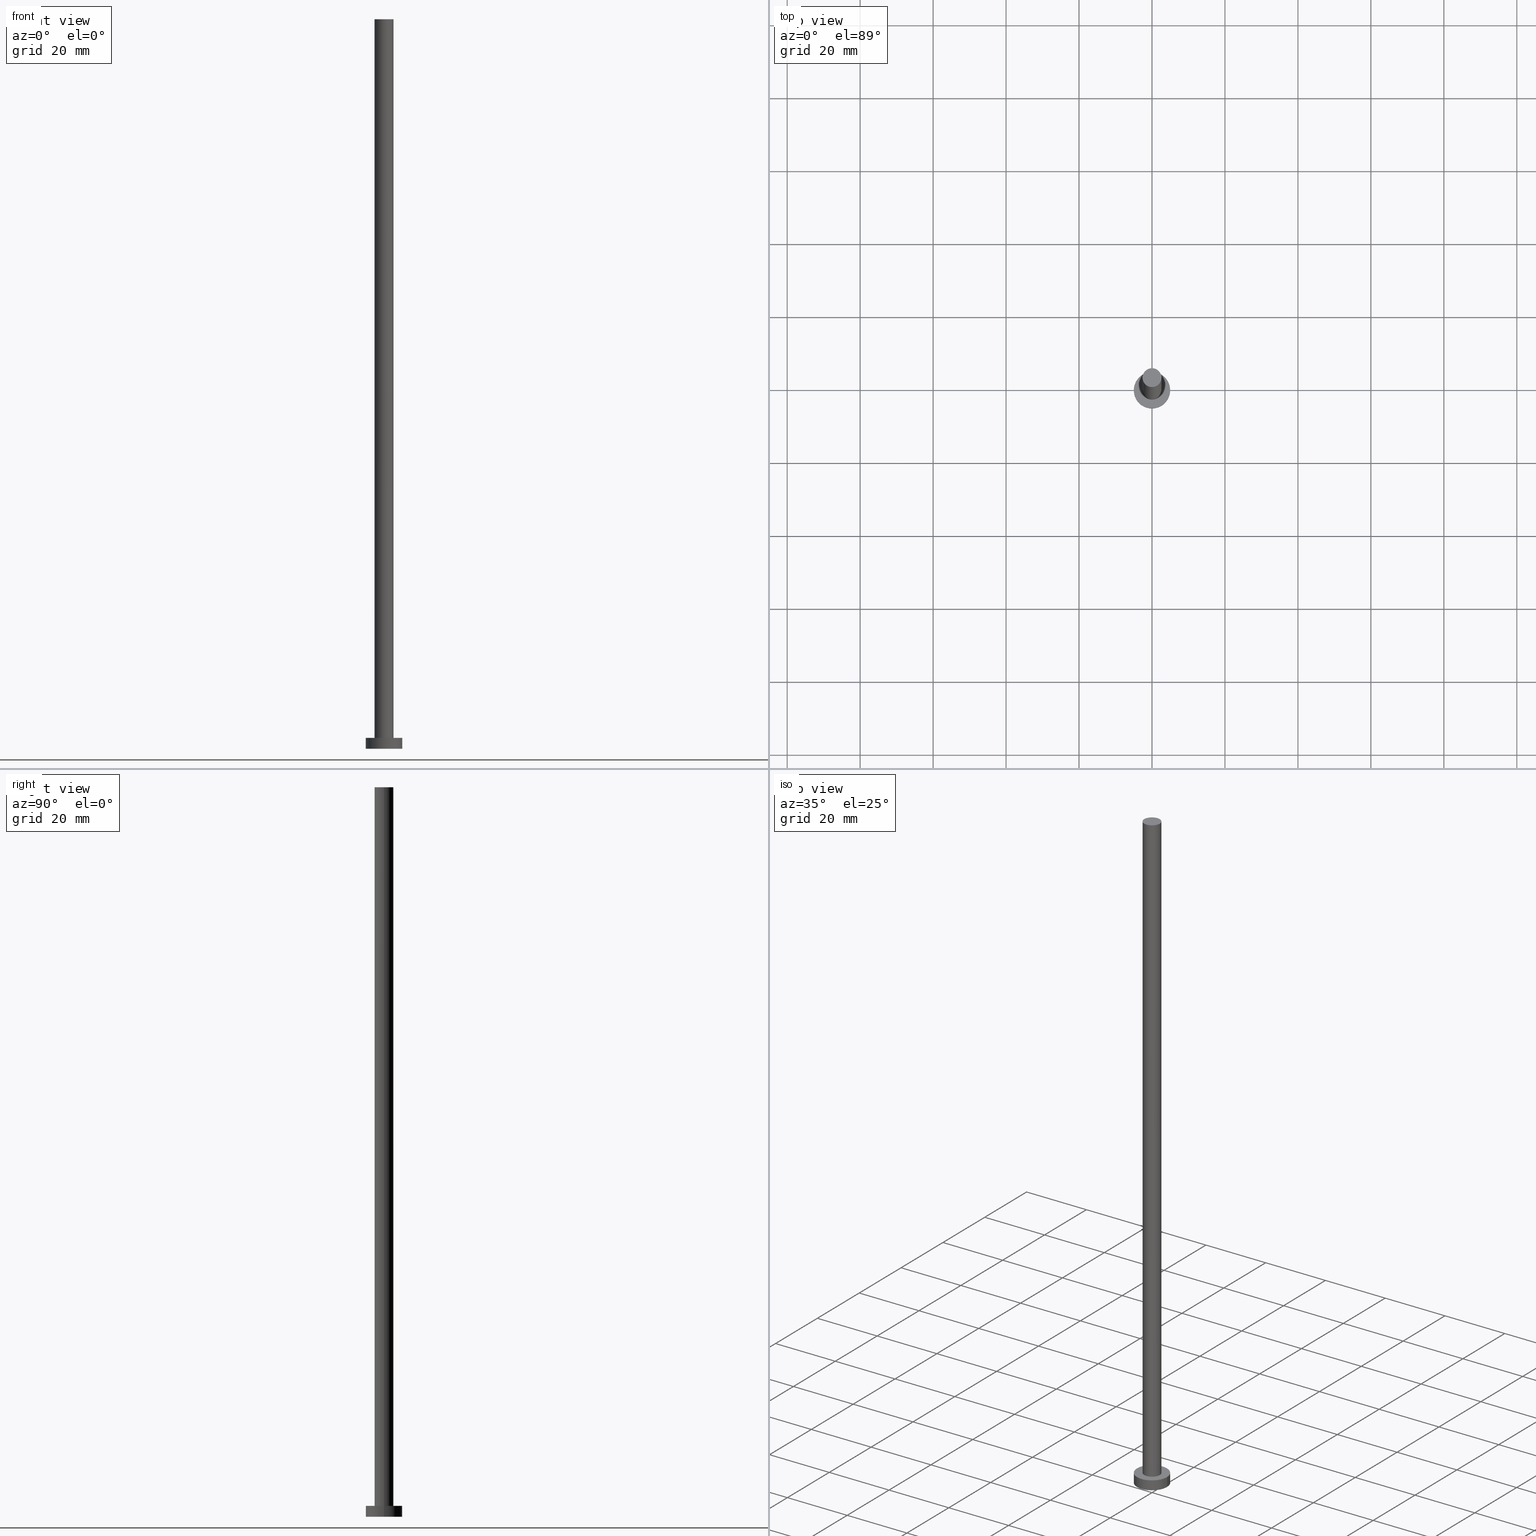
[diagram: canonical four-view strip — front | top / right | iso, engineering-drawing reading convention]
A machine part, canonical four-view strip (front | top / right | iso — engineering-drawing reading convention). The complete STEP part file that produces these views, byte-faithful:
ISO-10303-21;
HEADER;
FILE_DESCRIPTION (( 'STEP AP203' ),
    '1' );
FILE_NAME ('53a8.STEP',
    '2023-02-13T13:24:31',
    ( '' ),
    ( '' ),
    'SwSTEP 2.0',
    'SolidWorks 2019',
    '' );
FILE_SCHEMA (( 'CONFIG_CONTROL_DESIGN' ));
ENDSEC;

DATA;
#1 = VERTEX_POINT ( 'NONE', #17 ) ;
#2 = EDGE_LOOP ( 'NONE', ( #103, #217 ) ) ;
#3 = CARTESIAN_POINT ( 'NONE',  ( 0.000000000000000000, 0.000000000000000000, 200.0000000000000000 ) ) ;
#4 = ADVANCED_BREP_SHAPE_REPRESENTATION ( '53a8', ( #187, #215 ), #126 ) ;
#5 = CYLINDRICAL_SURFACE ( 'NONE', #11, 5.000000000000000000 ) ;
#6 = VECTOR ( 'NONE', #127, 1000.000000000000000 ) ;
#7 = CARTESIAN_POINT ( 'NONE',  ( 0.000000000000000000, 0.000000000000000000, 200.0000000000000000 ) ) ;
#8 = DIRECTION ( 'NONE',  ( -0.000000000000000000, -0.000000000000000000, -1.000000000000000000 ) ) ;
#9 = CARTESIAN_POINT ( 'NONE',  ( 0.000000000000000000, 0.000000000000000000, 200.0000000000000000 ) ) ;
#10 = PERSON_AND_ORGANIZATION ( #85, #47 ) ;
#11 = AXIS2_PLACEMENT_3D ( 'NONE', #16, #102, #141 ) ;
#12 = APPROVAL_STATUS ( 'not_yet_approved' ) ;
#13 = EDGE_LOOP ( 'NONE', ( #117, #98, #15, #81 ) ) ;
#14 = APPLICATION_PROTOCOL_DEFINITION ( 'international standard', 'config_control_design', 1994, #60 ) ;
#15 = ORIENTED_EDGE ( 'NONE', *, *, #121, .T. ) ;
#16 = CARTESIAN_POINT ( 'NONE',  ( 0.000000000000000000, 0.000000000000000000, 3.000000000000000000 ) ) ;
#17 = CARTESIAN_POINT ( 'NONE',  ( 5.000000000000000000, 6.123233995736766282E-16, 0.000000000000000000 ) ) ;
#18 = AXIS2_PLACEMENT_3D ( 'NONE', #144, #49, #22 ) ;
#19 = APPROVAL_PERSON_ORGANIZATION ( #31, #96, #133 ) ;
#20 = ORIENTED_EDGE ( 'NONE', *, *, #169, .F. ) ;
#21 = VERTEX_POINT ( 'NONE', #204 ) ;
#22 = DIRECTION ( 'NONE',  ( 1.000000000000000000, 0.000000000000000000, 0.000000000000000000 ) ) ;
#23 = CIRCLE ( 'NONE', #201, 5.000000000000000000 ) ;
#24 = LOCAL_TIME ( 14, 24, 31.00000000000000000, #193 ) ;
#25 = FACE_OUTER_BOUND ( 'NONE', #80, .T. ) ;
#26 = CIRCLE ( 'NONE', #113, 2.600000000000000089 ) ;
#27 =( NAMED_UNIT ( * ) PLANE_ANGLE_UNIT ( ) SI_UNIT ( $, .RADIAN. ) );
#28 = AXIS2_PLACEMENT_3D ( 'NONE', #161, #128, #108 ) ;
#29 = DATE_AND_TIME ( #54, #164 ) ;
#30 = VERTEX_POINT ( 'NONE', #155 ) ;
#31 = PERSON_AND_ORGANIZATION ( #85, #47 ) ;
#32 = PERSON_AND_ORGANIZATION_ROLE ( 'creator' ) ;
#33 = EDGE_LOOP ( 'NONE', ( #112, #178 ) ) ;
#34 = VECTOR ( 'NONE', #243, 1000.000000000000000 ) ;
#35 = APPLICATION_CONTEXT ( 'configuration controlled 3d designs of mechanical parts and assemblies' ) ;
#36 = ORIENTED_EDGE ( 'NONE', *, *, #159, .F. ) ;
#37 = CARTESIAN_POINT ( 'NONE',  ( 0.000000000000000000, 0.000000000000000000, 3.000000000000000000 ) ) ;
#38 = LOCAL_TIME ( 14, 24, 31.00000000000000000, #149 ) ;
#39 = EDGE_CURVE ( 'NONE', #123, #1, #238, .T. ) ;
#40 = CARTESIAN_POINT ( 'NONE',  ( 0.000000000000000000, 0.000000000000000000, 3.000000000000000000 ) ) ;
#41 = EDGE_LOOP ( 'NONE', ( #115, #195, #253, #222 ) ) ;
#42 = ORIENTED_EDGE ( 'NONE', *, *, #110, .F. ) ;
#43 = CC_DESIGN_SECURITY_CLASSIFICATION ( #71, ( #56 ) ) ;
#44 = VERTEX_POINT ( 'NONE', #105 ) ;
#45 = DIRECTION ( 'NONE',  ( 1.000000000000000000, 0.000000000000000000, 0.000000000000000000 ) ) ;
#46 = CARTESIAN_POINT ( 'NONE',  ( 0.000000000000000000, 0.000000000000000000, 3.000000000000000000 ) ) ;
#47 = ORGANIZATION ( 'NEUR�EN�', 'NEUR�EN�', '' ) ;
#48 = EDGE_CURVE ( 'NONE', #123, #101, #234, .T. ) ;
#49 = DIRECTION ( 'NONE',  ( 0.000000000000000000, 0.000000000000000000, 1.000000000000000000 ) ) ;
#50 = CC_DESIGN_DATE_AND_TIME_ASSIGNMENT ( #247, #170, ( #64 ) ) ;
#51 = CARTESIAN_POINT ( 'NONE',  ( 0.000000000000000000, 0.000000000000000000, 0.000000000000000000 ) ) ;
#52 = CC_DESIGN_APPROVAL ( #96, ( #64 ) ) ;
#53 = DATE_TIME_ROLE ( 'classification_date' ) ;
#54 = CALENDAR_DATE ( 2023, 13, 2 ) ;
#55 = PERSON_AND_ORGANIZATION ( #85, #47 ) ;
#56 = PRODUCT_DEFINITION_FORMATION_WITH_SPECIFIED_SOURCE ( 'LIBOVOLN�', '', #212, .NOT_KNOWN. ) ;
#57 = EDGE_CURVE ( 'NONE', #21, #30, #226, .T. ) ;
#58 = DIRECTION ( 'NONE',  ( 1.000000000000000000, 0.000000000000000000, 0.000000000000000000 ) ) ;
#59 = CARTESIAN_POINT ( 'NONE',  ( 0.000000000000000000, 0.000000000000000000, 0.000000000000000000 ) ) ;
#60 = APPLICATION_CONTEXT ( 'configuration controlled 3d designs of mechanical parts and assemblies' ) ;
#61 = FACE_OUTER_BOUND ( 'NONE', #13, .T. ) ;
#62 = CARTESIAN_POINT ( 'NONE',  ( 0.000000000000000000, 0.000000000000000000, 3.000000000000000000 ) ) ;
#63 = DIRECTION ( 'NONE',  ( -0.000000000000000000, -0.000000000000000000, -1.000000000000000000 ) ) ;
#64 = PRODUCT_DEFINITION ( 'NEZN�M�', '', #56, #245 ) ;
#65 = CYLINDRICAL_SURFACE ( 'NONE', #160, 2.600000000000000089 ) ;
#66 = DIRECTION ( 'NONE',  ( 0.000000000000000000, 0.000000000000000000, 1.000000000000000000 ) ) ;
#67 = CARTESIAN_POINT ( 'NONE',  ( 2.600000000000000089, 3.184081677783118191E-16, 3.000000000000000000 ) ) ;
#68 = PERSON_AND_ORGANIZATION_ROLE ( 'creator' ) ;
#69 = AXIS2_PLACEMENT_3D ( 'NONE', #59, #76, #230 ) ;
#70 = APPROVAL_DATE_TIME ( #29, #96 ) ;
#71 = SECURITY_CLASSIFICATION ( '', '', #213 ) ;
#72 = PERSON_AND_ORGANIZATION_ROLE ( 'classification_officer' ) ;
#73 = APPROVAL_STATUS ( 'not_yet_approved' ) ;
#74 = CC_DESIGN_APPROVAL ( #148, ( #71 ) ) ;
#75 = CLOSED_SHELL ( 'NONE', ( #251, #77, #140, #100, #162, #180, #94 ) ) ;
#76 = DIRECTION ( 'NONE',  ( 0.000000000000000000, 0.000000000000000000, 1.000000000000000000 ) ) ;
#77 = ADVANCED_FACE ( 'NONE', ( #61 ), #5, .T. ) ;
#78 = FACE_OUTER_BOUND ( 'NONE', #219, .T. ) ;
#79 = AXIS2_PLACEMENT_3D ( 'NONE', #205, #228, #146 ) ;
#80 = EDGE_LOOP ( 'NONE', ( #118, #200, #120, #220 ) ) ;
#81 = ORIENTED_EDGE ( 'NONE', *, *, #186, .F. ) ;
#82 = DIRECTION ( 'NONE',  ( 0.000000000000000000, 0.000000000000000000, 1.000000000000000000 ) ) ;
#83 = LINE ( 'NONE', #229, #6 ) ;
#84 = DIRECTION ( 'NONE',  ( 1.000000000000000000, 0.000000000000000000, -0.000000000000000000 ) ) ;
#85 = PERSON ( 'NEUR�EN�', 'NEUR�EN�', 'NEUR�EN�', ('NEUR�EN�'), ('NEUR�EN�'), ('NEUR�EN�') ) ;
#86 =( LENGTH_UNIT ( ) NAMED_UNIT ( * ) SI_UNIT ( .MILLI., .METRE. ) );
#87 = CIRCLE ( 'NONE', #208, 2.600000000000000089 ) ;
#88 = FACE_OUTER_BOUND ( 'NONE', #211, .T. ) ;
#89 = EDGE_CURVE ( 'NONE', #101, #123, #23, .T. ) ;
#90 = PERSON_AND_ORGANIZATION ( #85, #47 ) ;
#91 = CC_DESIGN_PERSON_AND_ORGANIZATION_ASSIGNMENT ( #233, #68, ( #56 ) ) ;
#92 = AXIS2_PLACEMENT_3D ( 'NONE', #51, #124, #84 ) ;
#93 = APPROVAL_ROLE ( '' ) ;
#94 = ADVANCED_FACE ( 'NONE', ( #221 ), #179, .T. ) ;
#95 = SHAPE_DEFINITION_REPRESENTATION ( #177, #4 ) ;
#96 = APPROVAL ( #73, 'NEUR�EN�' ) ;
#97 = ORIENTED_EDGE ( 'NONE', *, *, #48, .T. ) ;
#98 = ORIENTED_EDGE ( 'NONE', *, *, #39, .T. ) ;
#99 = VECTOR ( 'NONE', #63, 1000.000000000000000 ) ;
#100 = ADVANCED_FACE ( 'NONE', ( #241, #78 ), #239, .T. ) ;
#101 = VERTEX_POINT ( 'NONE', #225 ) ;
#102 = DIRECTION ( 'NONE',  ( -0.000000000000000000, -0.000000000000000000, -1.000000000000000000 ) ) ;
#103 = ORIENTED_EDGE ( 'NONE', *, *, #134, .F. ) ;
#104 = VERTEX_POINT ( 'NONE', #135 ) ;
#105 = CARTESIAN_POINT ( 'NONE',  ( -5.000000000000000000, 0.000000000000000000, 0.000000000000000000 ) ) ;
#106 = DIRECTION ( 'NONE',  ( 1.000000000000000000, 0.000000000000000000, 0.000000000000000000 ) ) ;
#107 = CYLINDRICAL_SURFACE ( 'NONE', #28, 2.600000000000000089 ) ;
#108 = DIRECTION ( 'NONE',  ( -1.000000000000000000, 0.000000000000000000, 0.000000000000000000 ) ) ;
#109 = DIRECTION ( 'NONE',  ( 0.000000000000000000, 0.000000000000000000, 1.000000000000000000 ) ) ;
#110 = EDGE_CURVE ( 'NONE', #104, #196, #26, .T. ) ;
#111 = COORDINATED_UNIVERSAL_TIME_OFFSET ( 1, 0, .AHEAD. ) ;
#112 = ORIENTED_EDGE ( 'NONE', *, *, #159, .T. ) ;
#113 = AXIS2_PLACEMENT_3D ( 'NONE', #37, #139, #175 ) ;
#114 = CALENDAR_DATE ( 2023, 13, 2 ) ;
#115 = ORIENTED_EDGE ( 'NONE', *, *, #39, .F. ) ;
#116 = CC_DESIGN_DATE_AND_TIME_ASSIGNMENT ( #216, #53, ( #71 ) ) ;
#117 = ORIENTED_EDGE ( 'NONE', *, *, #48, .F. ) ;
#118 = ORIENTED_EDGE ( 'NONE', *, *, #57, .F. ) ;
#119 = AXIS2_PLACEMENT_3D ( 'NONE', #40, #181, #137 ) ;
#120 = ORIENTED_EDGE ( 'NONE', *, *, #198, .T. ) ;
#121 = EDGE_CURVE ( 'NONE', #1, #44, #224, .T. ) ;
#122 = CARTESIAN_POINT ( 'NONE',  ( 0.000000000000000000, 0.000000000000000000, 3.000000000000000000 ) ) ;
#123 = VERTEX_POINT ( 'NONE', #242 ) ;
#124 = DIRECTION ( 'NONE',  ( 0.000000000000000000, 0.000000000000000000, 1.000000000000000000 ) ) ;
#125 = DIRECTION ( 'NONE',  ( 1.000000000000000000, 0.000000000000000000, 0.000000000000000000 ) ) ;
#126 =( GEOMETRIC_REPRESENTATION_CONTEXT ( 3 ) GLOBAL_UNCERTAINTY_ASSIGNED_CONTEXT ( ( #167 ) ) GLOBAL_UNIT_ASSIGNED_CONTEXT ( ( #86, #27, #163 ) ) REPRESENTATION_CONTEXT ( 'NONE', 'WORKASPACE' ) );
#127 = DIRECTION ( 'NONE',  ( -0.000000000000000000, -0.000000000000000000, -1.000000000000000000 ) ) ;
#128 = DIRECTION ( 'NONE',  ( -0.000000000000000000, -0.000000000000000000, -1.000000000000000000 ) ) ;
#129 = DATE_AND_TIME ( #210, #38 ) ;
#130 = AXIS2_PLACEMENT_3D ( 'NONE', #254, #240, #203 ) ;
#131 = CALENDAR_DATE ( 2023, 13, 2 ) ;
#132 = AXIS2_PLACEMENT_3D ( 'NONE', #3, #157, #176 ) ;
#133 = APPROVAL_ROLE ( '' ) ;
#134 = EDGE_CURVE ( 'NONE', #44, #1, #173, .T. ) ;
#135 = CARTESIAN_POINT ( 'NONE',  ( -2.600000000000000089, 0.000000000000000000, 3.000000000000000000 ) ) ;
#136 = APPROVAL ( #235, 'NEUR�EN�' ) ;
#137 = DIRECTION ( 'NONE',  ( 1.000000000000000000, 0.000000000000000000, 0.000000000000000000 ) ) ;
#138 = PRODUCT_RELATED_PRODUCT_CATEGORY ( 'detail', '', ( #212 ) ) ;
#139 = DIRECTION ( 'NONE',  ( 0.000000000000000000, 0.000000000000000000, 1.000000000000000000 ) ) ;
#140 = ADVANCED_FACE ( 'NONE', ( #184 ), #244, .T. ) ;
#141 = DIRECTION ( 'NONE',  ( -1.000000000000000000, 0.000000000000000000, 0.000000000000000000 ) ) ;
#142 = DIRECTION ( 'NONE',  ( 0.000000000000000000, 0.000000000000000000, 1.000000000000000000 ) ) ;
#143 = PLANE ( 'NONE',  #92 ) ;
#144 = CARTESIAN_POINT ( 'NONE',  ( 0.000000000000000000, 0.000000000000000000, 0.000000000000000000 ) ) ;
#145 = LOCAL_TIME ( 14, 24, 31.00000000000000000, #250 ) ;
#146 = DIRECTION ( 'NONE',  ( -1.000000000000000000, 0.000000000000000000, 0.000000000000000000 ) ) ;
#147 = PERSON_AND_ORGANIZATION ( #85, #47 ) ;
#148 = APPROVAL ( #12, 'NEUR�EN�' ) ;
#149 = COORDINATED_UNIVERSAL_TIME_OFFSET ( 1, 0, .AHEAD. ) ;
#150 = CC_DESIGN_PERSON_AND_ORGANIZATION_ASSIGNMENT ( #10, #166, ( #212 ) ) ;
#151 = APPROVAL_DATE_TIME ( #252, #148 ) ;
#152 = DIRECTION ( 'NONE',  ( 0.000000000000000000, 0.000000000000000000, 1.000000000000000000 ) ) ;
#153 = EDGE_LOOP ( 'NONE', ( #42, #223 ) ) ;
#154 = LOCAL_TIME ( 14, 24, 31.00000000000000000, #111 ) ;
#155 = CARTESIAN_POINT ( 'NONE',  ( -2.600000000000000089, 0.000000000000000000, 200.0000000000000000 ) ) ;
#156 = DIRECTION ( 'NONE',  ( -0.000000000000000000, -0.000000000000000000, -1.000000000000000000 ) ) ;
#157 = DIRECTION ( 'NONE',  ( 0.000000000000000000, 0.000000000000000000, 1.000000000000000000 ) ) ;
#158 = MECHANICAL_CONTEXT ( 'NONE', #35, 'mechanical' ) ;
#159 = EDGE_CURVE ( 'NONE', #30, #21, #87, .T. ) ;
#160 = AXIS2_PLACEMENT_3D ( 'NONE', #7, #8, #207 ) ;
#161 = CARTESIAN_POINT ( 'NONE',  ( 0.000000000000000000, 0.000000000000000000, 200.0000000000000000 ) ) ;
#162 = ADVANCED_FACE ( 'NONE', ( #227 ), #143, .F. ) ;
#163 =( NAMED_UNIT ( * ) SI_UNIT ( $, .STERADIAN. ) SOLID_ANGLE_UNIT ( ) );
#164 = LOCAL_TIME ( 14, 24, 31.00000000000000000, #194 ) ;
#165 = LINE ( 'NONE', #188, #99 ) ;
#166 = PERSON_AND_ORGANIZATION_ROLE ( 'design_owner' ) ;
#167 = UNCERTAINTY_MEASURE_WITH_UNIT (LENGTH_MEASURE( 1.000000000000000082E-05 ), #86, 'distance_accuracy_value', 'NONE');
#168 = PERSON_AND_ORGANIZATION ( #85, #47 ) ;
#169 = EDGE_CURVE ( 'NONE', #21, #196, #83, .T. ) ;
#170 = DATE_TIME_ROLE ( 'creation_date' ) ;
#171 = APPROVAL_ROLE ( '' ) ;
#172 = ORIENTED_EDGE ( 'NONE', *, *, #110, .T. ) ;
#173 = CIRCLE ( 'NONE', #18, 5.000000000000000000 ) ;
#174 = AXIS2_PLACEMENT_3D ( 'NONE', #46, #109, #125 ) ;
#175 = DIRECTION ( 'NONE',  ( 1.000000000000000000, 0.000000000000000000, 0.000000000000000000 ) ) ;
#176 = DIRECTION ( 'NONE',  ( 1.000000000000000000, 0.000000000000000000, -0.000000000000000000 ) ) ;
#177 = PRODUCT_DEFINITION_SHAPE ( 'NONE', 'NONE',  #64 ) ;
#178 = ORIENTED_EDGE ( 'NONE', *, *, #57, .T. ) ;
#179 = PLANE ( 'NONE',  #132 ) ;
#180 = ADVANCED_FACE ( 'NONE', ( #88 ), #107, .T. ) ;
#181 = DIRECTION ( 'NONE',  ( 0.000000000000000000, 0.000000000000000000, 1.000000000000000000 ) ) ;
#182 = CC_DESIGN_PERSON_AND_ORGANIZATION_ASSIGNMENT ( #90, #32, ( #64 ) ) ;
#183 = APPLICATION_PROTOCOL_DEFINITION ( 'international standard', 'config_control_design', 1994, #35 ) ;
#184 = FACE_OUTER_BOUND ( 'NONE', #41, .T. ) ;
#185 = LINE ( 'NONE', #206, #34 ) ;
#186 = EDGE_CURVE ( 'NONE', #101, #44, #185, .T. ) ;
#187 = MANIFOLD_SOLID_BREP ( 'P�idat vysunut�m3', #75 ) ;
#188 = CARTESIAN_POINT ( 'NONE',  ( -2.600000000000000089, 0.000000000000000000, 200.0000000000000000 ) ) ;
#189 = CARTESIAN_POINT ( 'NONE',  ( 0.000000000000000000, 0.000000000000000000, 0.000000000000000000 ) ) ;
#190 = VECTOR ( 'NONE', #156, 1000.000000000000000 ) ;
#191 = PERSON_AND_ORGANIZATION ( #85, #47 ) ;
#192 = AXIS2_PLACEMENT_3D ( 'NONE', #62, #142, #236 ) ;
#193 = COORDINATED_UNIVERSAL_TIME_OFFSET ( 1, 0, .AHEAD. ) ;
#194 = COORDINATED_UNIVERSAL_TIME_OFFSET ( 1, 0, .AHEAD. ) ;
#195 = ORIENTED_EDGE ( 'NONE', *, *, #89, .F. ) ;
#196 = VERTEX_POINT ( 'NONE', #67 ) ;
#197 = ORIENTED_EDGE ( 'NONE', *, *, #237, .T. ) ;
#198 = EDGE_CURVE ( 'NONE', #196, #104, #246, .T. ) ;
#199 = CARTESIAN_POINT ( 'NONE',  ( 5.000000000000000000, 6.123233995736766282E-16, 3.000000000000000000 ) ) ;
#200 = ORIENTED_EDGE ( 'NONE', *, *, #169, .T. ) ;
#201 = AXIS2_PLACEMENT_3D ( 'NONE', #122, #152, #58 ) ;
#202 = APPROVAL_PERSON_ORGANIZATION ( #191, #148, #171 ) ;
#203 = DIRECTION ( 'NONE',  ( 1.000000000000000000, 0.000000000000000000, 0.000000000000000000 ) ) ;
#204 = CARTESIAN_POINT ( 'NONE',  ( 2.600000000000000089, 3.184081677783118191E-16, 200.0000000000000000 ) ) ;
#205 = CARTESIAN_POINT ( 'NONE',  ( 0.000000000000000000, 0.000000000000000000, 3.000000000000000000 ) ) ;
#206 = CARTESIAN_POINT ( 'NONE',  ( -5.000000000000000000, 0.000000000000000000, 3.000000000000000000 ) ) ;
#207 = DIRECTION ( 'NONE',  ( -1.000000000000000000, 0.000000000000000000, 0.000000000000000000 ) ) ;
#208 = AXIS2_PLACEMENT_3D ( 'NONE', #9, #66, #45 ) ;
#209 = CC_DESIGN_PERSON_AND_ORGANIZATION_ASSIGNMENT ( #147, #72, ( #71 ) ) ;
#210 = CALENDAR_DATE ( 2023, 13, 2 ) ;
#211 = EDGE_LOOP ( 'NONE', ( #20, #36, #197, #172 ) ) ;
#212 = PRODUCT ( '53a8', '53a8', '', ( #158 ) ) ;
#213 = SECURITY_CLASSIFICATION_LEVEL ( 'unclassified' ) ;
#214 = ORIENTED_EDGE ( 'NONE', *, *, #89, .T. ) ;
#215 = AXIS2_PLACEMENT_3D ( 'NONE', #189, #82, #106 ) ;
#216 = DATE_AND_TIME ( #114, #24 ) ;
#217 = ORIENTED_EDGE ( 'NONE', *, *, #121, .F. ) ;
#218 = CALENDAR_DATE ( 2023, 13, 2 ) ;
#219 = EDGE_LOOP ( 'NONE', ( #214, #97 ) ) ;
#220 = ORIENTED_EDGE ( 'NONE', *, *, #237, .F. ) ;
#221 = FACE_OUTER_BOUND ( 'NONE', #33, .T. ) ;
#222 = ORIENTED_EDGE ( 'NONE', *, *, #134, .T. ) ;
#223 = ORIENTED_EDGE ( 'NONE', *, *, #198, .F. ) ;
#224 = CIRCLE ( 'NONE', #69, 5.000000000000000000 ) ;
#225 = CARTESIAN_POINT ( 'NONE',  ( -5.000000000000000000, 0.000000000000000000, 3.000000000000000000 ) ) ;
#226 = CIRCLE ( 'NONE', #130, 2.600000000000000089 ) ;
#227 = FACE_OUTER_BOUND ( 'NONE', #2, .T. ) ;
#228 = DIRECTION ( 'NONE',  ( -0.000000000000000000, -0.000000000000000000, -1.000000000000000000 ) ) ;
#229 = CARTESIAN_POINT ( 'NONE',  ( 2.600000000000000089, 3.184081677783118191E-16, 200.0000000000000000 ) ) ;
#230 = DIRECTION ( 'NONE',  ( 1.000000000000000000, 0.000000000000000000, 0.000000000000000000 ) ) ;
#231 = APPROVAL_PERSON_ORGANIZATION ( #168, #136, #93 ) ;
#232 = APPROVAL_DATE_TIME ( #129, #136 ) ;
#233 = PERSON_AND_ORGANIZATION ( #85, #47 ) ;
#234 = CIRCLE ( 'NONE', #119, 5.000000000000000000 ) ;
#235 = APPROVAL_STATUS ( 'not_yet_approved' ) ;
#236 = DIRECTION ( 'NONE',  ( 1.000000000000000000, 0.000000000000000000, -0.000000000000000000 ) ) ;
#237 = EDGE_CURVE ( 'NONE', #30, #104, #165, .T. ) ;
#238 = LINE ( 'NONE', #199, #190 ) ;
#239 = PLANE ( 'NONE',  #192 ) ;
#240 = DIRECTION ( 'NONE',  ( 0.000000000000000000, 0.000000000000000000, 1.000000000000000000 ) ) ;
#241 = FACE_BOUND ( 'NONE', #153, .T. ) ;
#242 = CARTESIAN_POINT ( 'NONE',  ( 5.000000000000000000, 6.123233995736766282E-16, 3.000000000000000000 ) ) ;
#243 = DIRECTION ( 'NONE',  ( -0.000000000000000000, -0.000000000000000000, -1.000000000000000000 ) ) ;
#244 = CYLINDRICAL_SURFACE ( 'NONE', #79, 5.000000000000000000 ) ;
#245 = DESIGN_CONTEXT ( 'detailed design', #60, 'design' ) ;
#246 = CIRCLE ( 'NONE', #174, 2.600000000000000089 ) ;
#247 = DATE_AND_TIME ( #131, #154 ) ;
#248 = PERSON_AND_ORGANIZATION_ROLE ( 'design_supplier' ) ;
#249 = CC_DESIGN_APPROVAL ( #136, ( #56 ) ) ;
#250 = COORDINATED_UNIVERSAL_TIME_OFFSET ( 1, 0, .AHEAD. ) ;
#251 = ADVANCED_FACE ( 'NONE', ( #25 ), #65, .T. ) ;
#252 = DATE_AND_TIME ( #218, #145 ) ;
#253 = ORIENTED_EDGE ( 'NONE', *, *, #186, .T. ) ;
#254 = CARTESIAN_POINT ( 'NONE',  ( 0.000000000000000000, 0.000000000000000000, 200.0000000000000000 ) ) ;
#255 = CC_DESIGN_PERSON_AND_ORGANIZATION_ASSIGNMENT ( #55, #248, ( #56 ) ) ;
ENDSEC;
END-ISO-10303-21;
